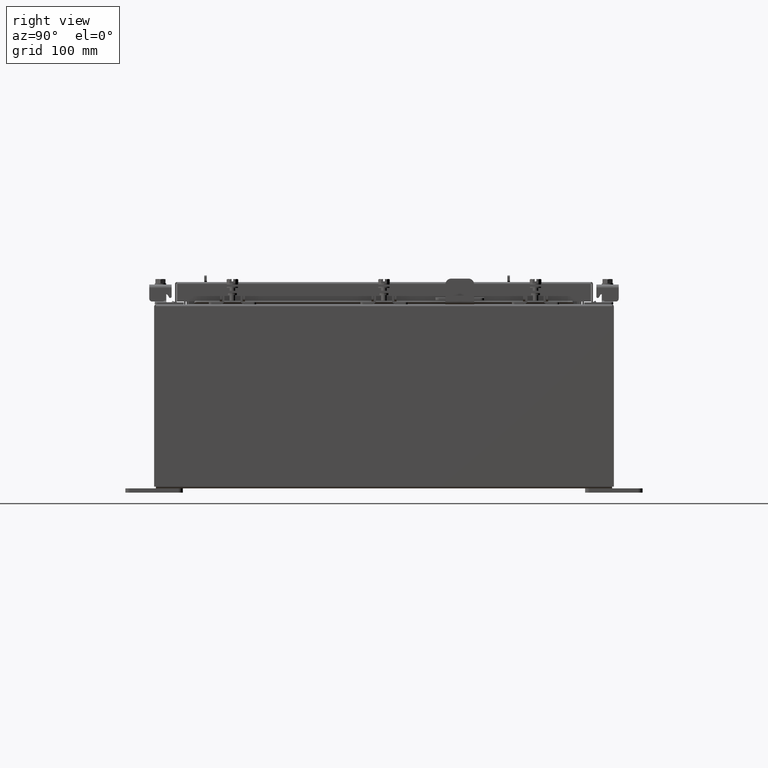
[diagram: clean part render]
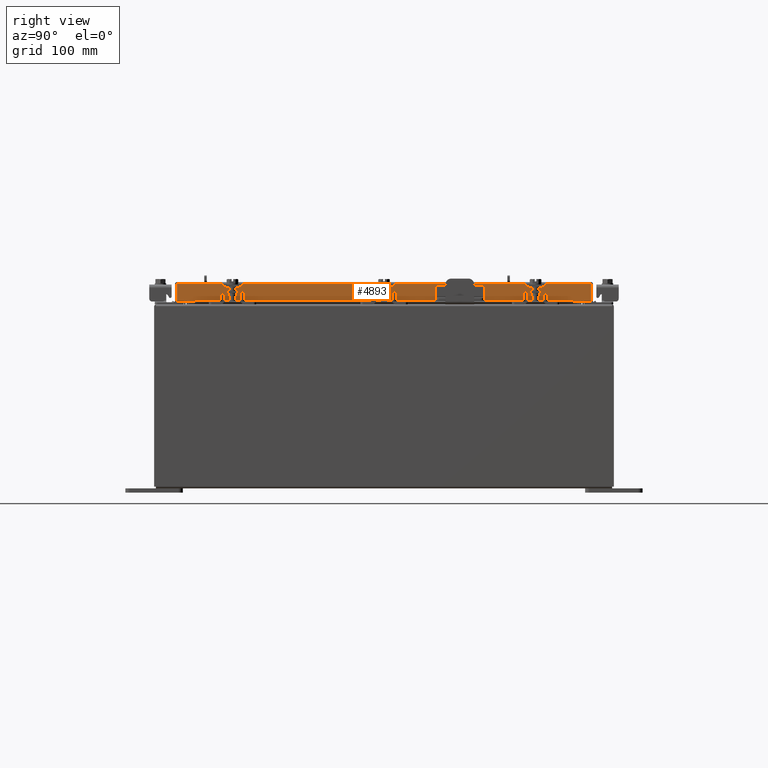
[diagram: same view with one face highlighted and labeled with its STEP entity id]
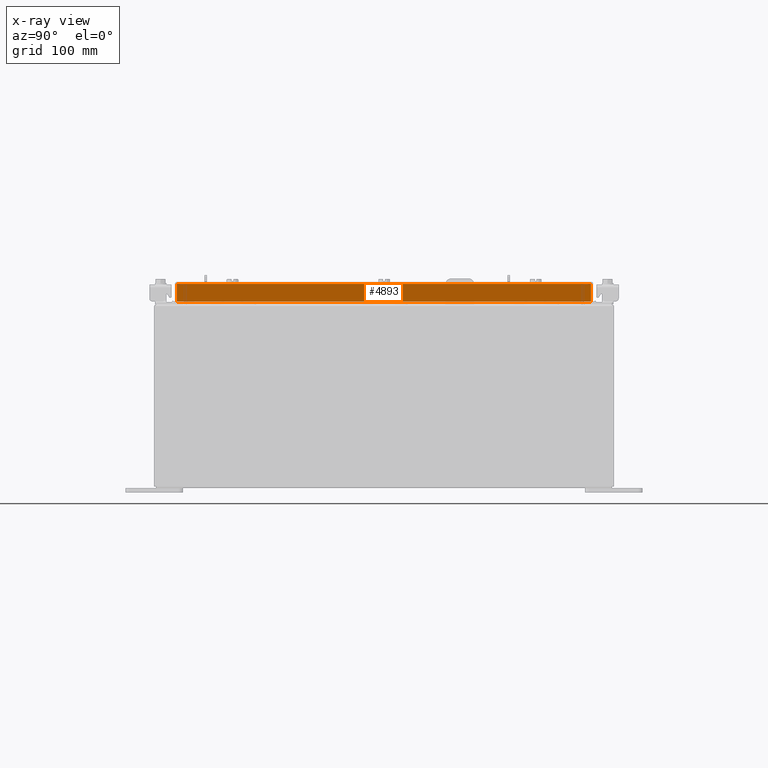
[diagram: x-ray of the same camera — body ghosted, the highlighted face saturated]
A machine part, right view. The second image highlights one B-rep face of the part: STEP entity #4893.
The next image is the same camera in x-ray: the body ghosted, the highlighted face saturated — about 0% of this face is hidden behind the body in this view.
In plain terms, the highlighted planar face has unit normal (1, 0, 0).
Its self-contained STEP definition (entity closure, byte-faithful):
#593 = CARTESIAN_POINT ( 'NONE',  ( 9.094000000000001200, -5.269035934039632300E-018, -0.08769999999999918100 ) ) ;
#1051 = VERTEX_POINT ( 'NONE', #15416 ) ;
#1391 = CARTESIAN_POINT ( 'NONE',  ( 9.094000000000001200, -9.005157864376267100, -0.08769999999999918100 ) ) ;
#1632 = EDGE_CURVE ( 'NONE', #1051, #14180, #17249, .T. ) ;
#2496 = AXIS2_PLACEMENT_3D ( 'NONE', #9710, #20133, #7958 ) ;
#3184 = DIRECTION ( 'NONE',  ( 0.0000000000000000000, -1.000000000000000000, 0.0000000000000000000 ) ) ;
#3280 = DIRECTION ( 'NONE',  ( 0.0000000000000000000, -1.000000000000000000, 0.0000000000000000000 ) ) ;
#4836 = VECTOR ( 'NONE', #7447, 39.37007874015748100 ) ;
#4893 = ADVANCED_FACE ( 'NONE', ( #19290 ), #13294, .T. ) ;
#5125 = LINE ( 'NONE', #7804, #14409 ) ;
#5154 = VECTOR ( 'NONE', #3280, 39.37007874015748100 ) ;
#5359 = VECTOR ( 'NONE', #11040, 39.37007874015748100 ) ;
#5850 = ORIENTED_EDGE ( 'NONE', *, *, #1632, .F. ) ;
#5857 = CARTESIAN_POINT ( 'NONE',  ( 9.094000000000001200, 9.005157864376267100, 8.851187499472213200E-014 ) ) ;
#5960 = EDGE_CURVE ( 'NONE', #12276, #9036, #19249, .T. ) ;
#6030 = LINE ( 'NONE', #5857, #19357 ) ;
#6563 = CARTESIAN_POINT ( 'NONE',  ( 9.094000000000003000, -9.005157864376261800, -0.8499999999999999800 ) ) ;
#7241 = ORIENTED_EDGE ( 'NONE', *, *, #18660, .F. ) ;
#7447 = DIRECTION ( 'NONE',  ( -2.818880942772360100E-015, -6.982962677686267500E-015, 1.000000000000000000 ) ) ;
#7632 = EDGE_LOOP ( 'NONE', ( #7241, #11423, #5850, #15255, #13508, #18350 ) ) ;
#7804 = CARTESIAN_POINT ( 'NONE',  ( 9.094000000000003000, -9.094000000000003000, -0.8499999999999999800 ) ) ;
#7958 = DIRECTION ( 'NONE',  ( 2.818880942772360100E-015, 0.0000000000000000000, -1.000000000000000000 ) ) ;
#8460 = CARTESIAN_POINT ( 'NONE',  ( 9.094000000000003000, -9.094000000000003000, -0.8499999999999999800 ) ) ;
#9036 = VERTEX_POINT ( 'NONE', #1391 ) ;
#9495 = LINE ( 'NONE', #17903, #4836 ) ;
#9710 = CARTESIAN_POINT ( 'NONE',  ( 9.094000000000001200, 0.0000000000000000000, 2.622574073917692700E-014 ) ) ;
#9783 = LINE ( 'NONE', #8460, #5154 ) ;
#9998 = CARTESIAN_POINT ( 'NONE',  ( 9.094000000000003000, 9.005157864376274200, -0.8499999999999999800 ) ) ;
#10531 = CARTESIAN_POINT ( 'NONE',  ( 9.094000000000001200, -8.255157864376263500, -0.8500000000000010900 ) ) ;
#11040 = DIRECTION ( 'NONE',  ( -1.693590113897317100E-031, -1.000000000000000000, 6.008022858289562200E-017 ) ) ;
#11256 = VERTEX_POINT ( 'NONE', #9998 ) ;
#11423 = ORIENTED_EDGE ( 'NONE', *, *, #17859, .F. ) ;
#12276 = VERTEX_POINT ( 'NONE', #17919 ) ;
#12621 = VECTOR ( 'NONE', #3184, 39.37007874015748100 ) ;
#13086 = EDGE_CURVE ( 'NONE', #11256, #1051, #5125, .T. ) ;
#13294 = PLANE ( 'NONE',  #2496 ) ;
#13508 = ORIENTED_EDGE ( 'NONE', *, *, #16900, .T. ) ;
#13971 = VERTEX_POINT ( 'NONE', #6563 ) ;
#14180 = VERTEX_POINT ( 'NONE', #10531 ) ;
#14409 = VECTOR ( 'NONE', #21744, 39.37007874015748100 ) ;
#15255 = ORIENTED_EDGE ( 'NONE', *, *, #13086, .F. ) ;
#15416 = CARTESIAN_POINT ( 'NONE',  ( 9.094000000000001200, 8.255157864376267100, -0.8500000000000010900 ) ) ;
#16900 = EDGE_CURVE ( 'NONE', #11256, #12276, #6030, .T. ) ;
#17139 = CARTESIAN_POINT ( 'NONE',  ( 9.094000000000001200, 8.255157864376267100, -0.8500000000000010900 ) ) ;
#17249 = LINE ( 'NONE', #17139, #12621 ) ;
#17859 = EDGE_CURVE ( 'NONE', #14180, #13971, #9783, .T. ) ;
#17903 = CARTESIAN_POINT ( 'NONE',  ( 9.094000000000001200, -9.005157864376267100, -0.07470000000000015500 ) ) ;
#17919 = CARTESIAN_POINT ( 'NONE',  ( 9.094000000000001200, 9.005157864376268900, -0.08769999999999918100 ) ) ;
#18058 = DIRECTION ( 'NONE',  ( -2.818880942772360100E-015, -6.982962677686267500E-015, 1.000000000000000000 ) ) ;
#18350 = ORIENTED_EDGE ( 'NONE', *, *, #5960, .T. ) ;
#18660 = EDGE_CURVE ( 'NONE', #13971, #9036, #9495, .T. ) ;
#19249 = LINE ( 'NONE', #593, #5359 ) ;
#19290 = FACE_OUTER_BOUND ( 'NONE', #7632, .T. ) ;
#19357 = VECTOR ( 'NONE', #18058, 39.37007874015748100 ) ;
#20133 = DIRECTION ( 'NONE',  ( 1.000000000000000000, 0.0000000000000000000, 2.818880942772360100E-015 ) ) ;
#21744 = DIRECTION ( 'NONE',  ( 0.0000000000000000000, -1.000000000000000000, 0.0000000000000000000 ) ) ;